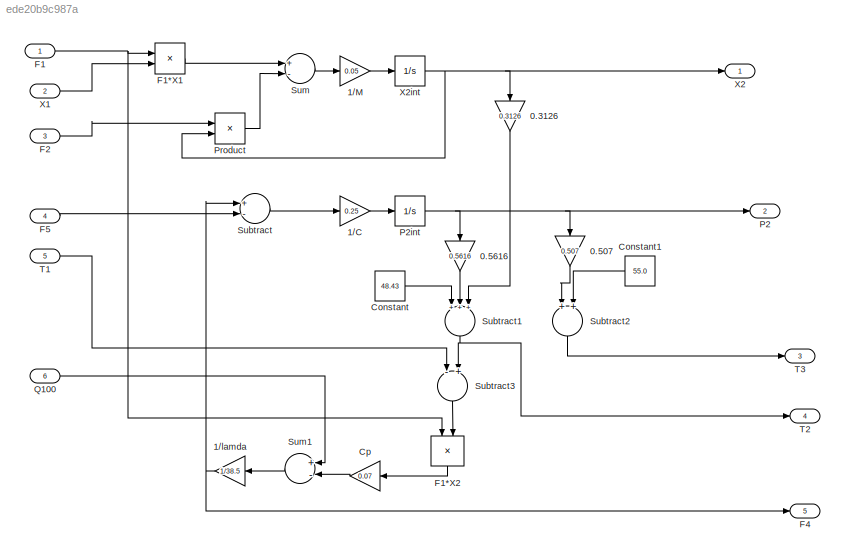
MODEL slx_ede20b9c987a
KIND model
CONFIG AbsTol = auto
CONFIG EnableMultiTasking = off
CONFIG FixedStep = auto
CONFIG MaxStep = auto
CONFIG MinStep = auto
CONFIG RelTol = 1e-3
CONFIG SampleTimeConstraint = Unconstrained
CONFIG Solver = VariableStepAuto
CONFIG SolverName = VariableStepAuto
CONFIG StartTime = 0.0
CONFIG StopTime = 10000
BLOCK [Gain] 0.3126
  Gain = 0.3126
  OutDataTypeStr = Inherit: Inherit via internal rule
  ParamDataTypeStr = Inherit: Inherit via internal rule
  SaturateOnIntegerOverflow = off
BLOCK [Gain] 0.507
  Gain = 0.507
  OutDataTypeStr = Inherit: Inherit via internal rule
  ParamDataTypeStr = Inherit: Inherit via internal rule
  SaturateOnIntegerOverflow = off
BLOCK [Gain] 0.5616
  Gain = 0.5616
  OutDataTypeStr = Inherit: Inherit via internal rule
  ParamDataTypeStr = Inherit: Inherit via internal rule
  SaturateOnIntegerOverflow = off
BLOCK [Gain] 1//C
  Gain = 0.25
  OutDataTypeStr = Inherit: Inherit via internal rule
  ParamDataTypeStr = Inherit: Inherit via internal rule
  SaturateOnIntegerOverflow = off
BLOCK [Gain] 1//M
  Gain = 0.05
  OutDataTypeStr = Inherit: Inherit via internal rule
  ParamDataTypeStr = Inherit: Inherit via internal rule
  SaturateOnIntegerOverflow = off
BLOCK [Gain] 1//lamda
  Gain = 1/38.5
  OutDataTypeStr = Inherit: Inherit via internal rule
  ParamDataTypeStr = Inherit: Inherit via internal rule
  SaturateOnIntegerOverflow = off
BLOCK [Constant] Constant
  Value = 48.43
BLOCK [Constant] Constant1
  Value = 55.0
BLOCK [Gain] Cp
  Gain = 0.07
  OutDataTypeStr = Inherit: Inherit via internal rule
  ParamDataTypeStr = Inherit: Inherit via internal rule
  SaturateOnIntegerOverflow = off
BLOCK [Inport] F1
  IconDisplay = Port number
BLOCK [Product] F1*X1
  InputSameDT = off
  OutDataTypeStr = Inherit: Inherit via internal rule
  Ports = [2, 1]
  RndMeth = Floor
  SaturateOnIntegerOverflow = off
BLOCK [Product] F1*X2
  InputSameDT = off
  OutDataTypeStr = Inherit: Inherit via internal rule
  Ports = [2, 1]
  RndMeth = Floor
  SaturateOnIntegerOverflow = off
BLOCK [Inport] F2
  IconDisplay = Port number
  Port = 3
BLOCK [Outport] F4
  IconDisplay = Port number
  Port = 5
BLOCK [Inport] F5
  IconDisplay = Port number
  Port = 4
BLOCK [Outport] P2
  IconDisplay = Port number
  Port = 2
BLOCK [Integrator] P2int
  Ports = [1, 1]
BLOCK [Product] Product
  InputSameDT = off
  OutDataTypeStr = Inherit: Inherit via internal rule
  Ports = [2, 1]
  RndMeth = Floor
  SaturateOnIntegerOverflow = off
BLOCK [Inport] Q100
  IconDisplay = Port number
  Port = 6
BLOCK [Sum] Subtract
  InputSameDT = off
  Inputs = +-
  OutDataTypeStr = Inherit: Inherit via internal rule
  Ports = [2, 1]
  SaturateOnIntegerOverflow = off
BLOCK [Sum] Subtract1
  InputSameDT = off
  Inputs = +++
  OutDataTypeStr = Inherit: Inherit via internal rule
  Ports = [3, 1]
  SaturateOnIntegerOverflow = off
BLOCK [Sum] Subtract2
  InputSameDT = off
  OutDataTypeStr = Inherit: Inherit via internal rule
  Ports = [2, 1]
  SaturateOnIntegerOverflow = off
BLOCK [Sum] Subtract3
  InputSameDT = off
  Inputs = -+
  OutDataTypeStr = Inherit: Inherit via internal rule
  Ports = [2, 1]
  SaturateOnIntegerOverflow = off
BLOCK [Sum] Sum
  InputSameDT = off
  Inputs = +-
  OutDataTypeStr = Inherit: Inherit via internal rule
  Ports = [2, 1]
  SaturateOnIntegerOverflow = off
BLOCK [Sum] Sum1
  InputSameDT = off
  Inputs = +-
  OutDataTypeStr = Inherit: Inherit via internal rule
  Ports = [2, 1]
  SaturateOnIntegerOverflow = off
BLOCK [Inport] T1
  IconDisplay = Port number
  Port = 5
BLOCK [Outport] T2
  IconDisplay = Port number
  Port = 4
BLOCK [Outport] T3
  IconDisplay = Port number
  Port = 3
BLOCK [Inport] X1
  IconDisplay = Port number
  Port = 2
BLOCK [Outport] X2
  IconDisplay = Port number
BLOCK [Integrator] X2int
  Ports = [1, 1]
LINE 0.3126:1 -> Subtract1:3
LINE 0.507:1 -> Subtract2:1
LINE 0.5616:1 -> Subtract1:2
LINE 1//C:1 -> P2int:1
LINE 1//M:1 -> X2int:1
NET 1//lamda:1 -> F4:1, Subtract:1
LINE Constant1:1 -> Subtract2:2
LINE Constant:1 -> Subtract1:1
LINE Cp:1 -> Sum1:2
LINE F1*X1:1 -> Sum:1
LINE F1*X2:1 -> Cp:1
NET F1:1 -> F1*X1:1, F1*X2:1
LINE F2:1 -> Product:1
LINE F5:1 -> Subtract:2
NET P2int:1 -> 0.507:1, 0.5616:1, P2:1
LINE Product:1 -> Sum:2
LINE Q100:1 -> Sum1:1
NET Subtract1:1 -> Subtract3:2, T2:1
LINE Subtract2:1 -> T3:1
LINE Subtract3:1 -> F1*X2:2
LINE Subtract:1 -> 1//C:1
LINE Sum1:1 -> 1//lamda:1
LINE Sum:1 -> 1//M:1
LINE T1:1 -> Subtract3:1
LINE X1:1 -> F1*X1:2
NET X2int:1 -> 0.3126:1, Product:2, X2:1
note: NET lines group one-source signal fan-out (src -> all destinations, sorted); 1:1 wires keep LINE
